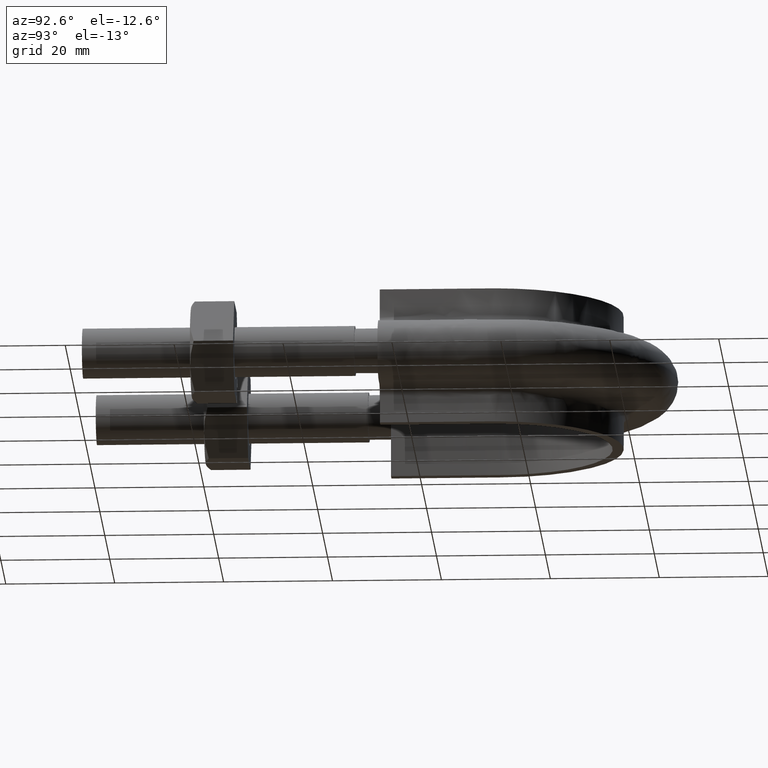
[diagram: clean part render]
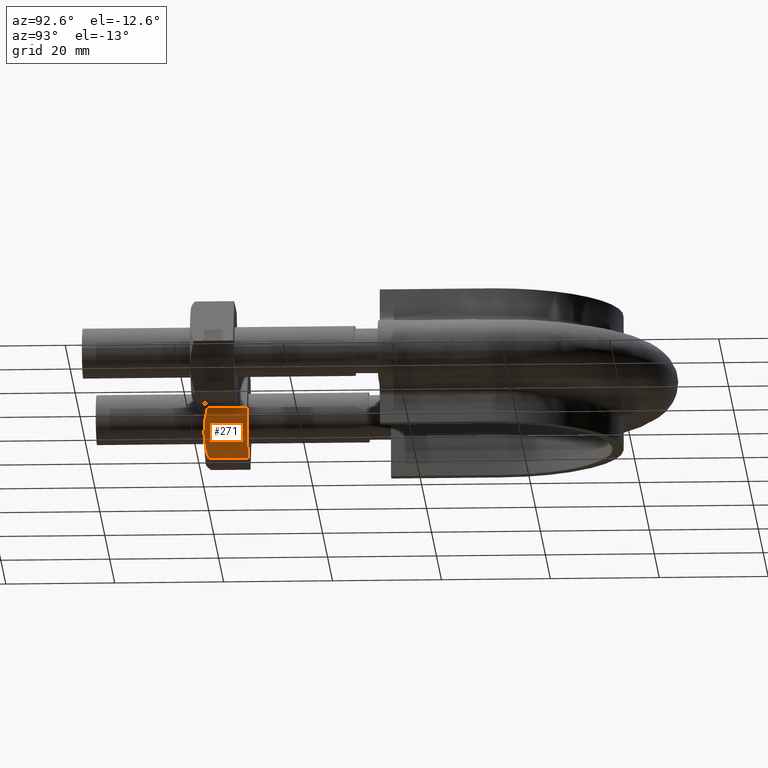
[diagram: same view with one face highlighted and labeled with its STEP entity id]
A machine part, auxiliary view. The second image highlights one B-rep face of the part: STEP entity #271.
In plain terms, the highlighted planar face has unit normal (-0.866, 0, 0.5).
Its self-contained STEP definition (entity closure, byte-faithful):
#271 = ADVANCED_FACE( '', ( #415 ), #416, .F. );
#415 = FACE_OUTER_BOUND( '', #1412, .T. );
#416 = PLANE( '', #1413 );
#1412 = EDGE_LOOP( '', ( #1822, #1823, #1824, #1825, #1826 ) );
#1413 = AXIS2_PLACEMENT_3D( '', #1827, #1828, #1829 );
#1822 = ORIENTED_EDGE( '', *, *, #2092, .F. );
#1823 = ORIENTED_EDGE( '', *, *, #2052, .F. );
#1824 = ORIENTED_EDGE( '', *, *, #2102, .F. );
#1825 = ORIENTED_EDGE( '', *, *, #2071, .F. );
#1826 = ORIENTED_EDGE( '', *, *, #2080, .F. );
#1827 = CARTESIAN_POINT( '', ( -18.1850454237764, 28.0000000000000, 1.97964474674128E-015 ) );
#1828 = DIRECTION( '', ( -0.866025403784439, 1.81492883563643E-016, 0.500000000000000 ) );
#1829 = DIRECTION( '', ( 2.09569930362941E-016, 1.00000000000000, -1.23259516440783E-032 ) );
#2052 = EDGE_CURVE( '', #2233, #2236, #2237, .T. );
#2071 = EDGE_CURVE( '', #2269, #2271, #2272, .T. );
#2080 = EDGE_CURVE( '', #2286, #2269, #2288, .F. );
#2092 = EDGE_CURVE( '', #2236, #2286, #2305, .T. );
#2102 = EDGE_CURVE( '', #2271, #2233, #2318, .T. );
#2233 = VERTEX_POINT( '', #2726 );
#2236 = VERTEX_POINT( '', #2729 );
#2237 = B_SPLINE_CURVE_WITH_KNOTS( '', 3, ( #2730, #2731, #2732, #2733, #2734, #2735 ), .UNSPECIFIED., .F., .F., ( 4, 2, 4 ), ( 3.49106365300398E-017, 0.00246745482903606, 0.00493490965807209 ), .UNSPECIFIED. );
#2269 = VERTEX_POINT( '', #2792 );
#2271 = VERTEX_POINT( '', #2794 );
#2272 = LINE( '', #2795, #2796 );
#2286 = VERTEX_POINT( '', #2814 );
#2288 = LINE( '', #2816, #2817 );
#2305 = B_SPLINE_CURVE_WITH_KNOTS( '', 3, ( #2851, #2852, #2853, #2854, #2855, #2856 ), .UNSPECIFIED., .F., .F., ( 4, 2, 4 ), ( 1.73472347597681E-018, 0.00246745482903609, 0.00493490965807219 ), .UNSPECIFIED. );
#2318 = LINE( '', #2888, #2889 );
#2726 = CARTESIAN_POINT( '', ( -23.0775337474838, 20.7505553499465, -8.47403835209863 ) );
#2729 = CARTESIAN_POINT( '', ( -20.6387840678323, 20.0000000000000, -4.25000000000000 ) );
#2730 = CARTESIAN_POINT( '', ( -23.0775337474837, 20.7505553499465, -8.47403835209860 ) );
#2731 = CARTESIAN_POINT( '', ( -22.6790699211709, 20.5215585493656, -7.78387875994650 ) );
#2732 = CARTESIAN_POINT( '', ( -22.2775056556637, 20.3328582843706, -7.08834904958394 ) );
#2733 = CARTESIAN_POINT( '', ( -21.4654371916751, 20.0716504305290, -5.68180521073129 ) );
#2734 = CARTESIAN_POINT( '', ( -21.0548670429277, 20.0000000000000, -4.97067685302956 ) );
#2735 = CARTESIAN_POINT( '', ( -20.6387840678323, 20.0000000000000, -4.24999999999999 ) );
#2792 = CARTESIAN_POINT( '', ( -18.2000343881808, 28.0000000000000, -0.0259616479013096 ) );
#2794 = CARTESIAN_POINT( '', ( -23.0775337474838, 28.0000000000000, -8.47403835209865 ) );
#2795 = CARTESIAN_POINT( '', ( -15.7387840678323, 28.0000000000000, 4.23704895708752 ) );
#2796 = VECTOR( '', #3155, 1000.00000000000 );
#2814 = CARTESIAN_POINT( '', ( -18.2000343881808, 20.7505553499465, -0.0259616479013098 ) );
#2816 = CARTESIAN_POINT( '', ( -18.2000343881808, 28.0000000000000, -0.0259616479013130 ) );
#2817 = VECTOR( '', #3172, 1000.00000000000 );
#2851 = CARTESIAN_POINT( '', ( -20.6387840678323, 20.0000000000000, -4.24999999999999 ) );
#2852 = CARTESIAN_POINT( '', ( -20.2227010927369, 20.0000000000000, -3.52932314697041 ) );
#2853 = CARTESIAN_POINT( '', ( -19.8121309439895, 20.0716504305290, -2.81819478926867 ) );
#2854 = CARTESIAN_POINT( '', ( -19.0000624800009, 20.3328582843706, -1.41165095041598 ) );
#2855 = CARTESIAN_POINT( '', ( -18.5984982144937, 20.5215585493656, -0.716121240053461 ) );
#2856 = CARTESIAN_POINT( '', ( -18.2000343881809, 20.7505553499465, -0.0259616479013470 ) );
#2888 = CARTESIAN_POINT( '', ( -23.0775337474838, 28.0000000000000, -8.47403835209865 ) );
#2889 = VECTOR( '', #3203, 1000.00000000000 );
#3155 = DIRECTION( '', ( -0.500000000000000, 1.75487645984538E-016, -0.866025403784439 ) );
#3172 = DIRECTION( '', ( -2.44921270764475E-016, -1.00000000000000, -6.12303176911189E-017 ) );
#3203 = DIRECTION( '', ( -2.44921270764475E-016, -1.00000000000000, -6.12303176911189E-017 ) );